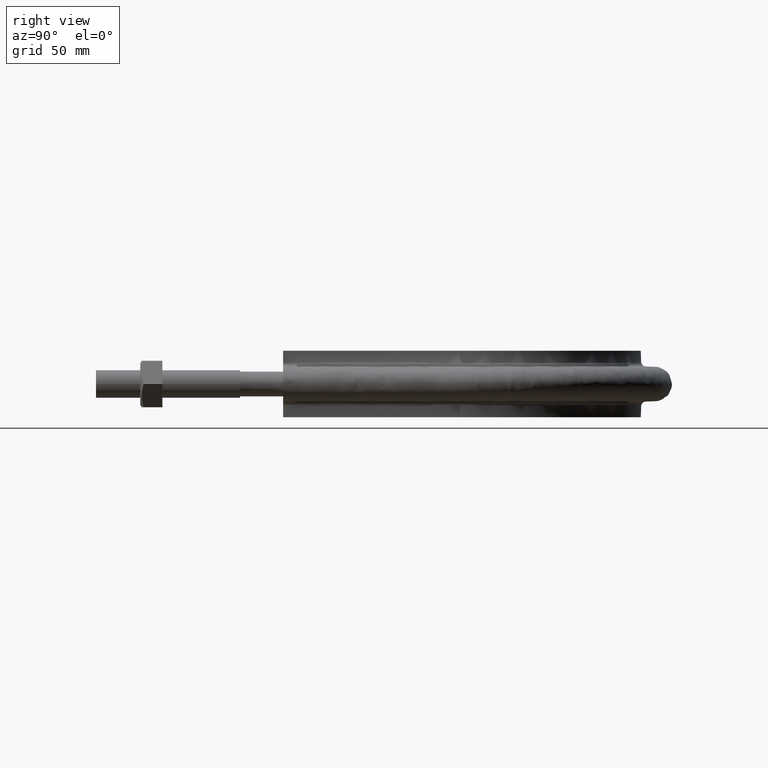
[diagram: clean part render]
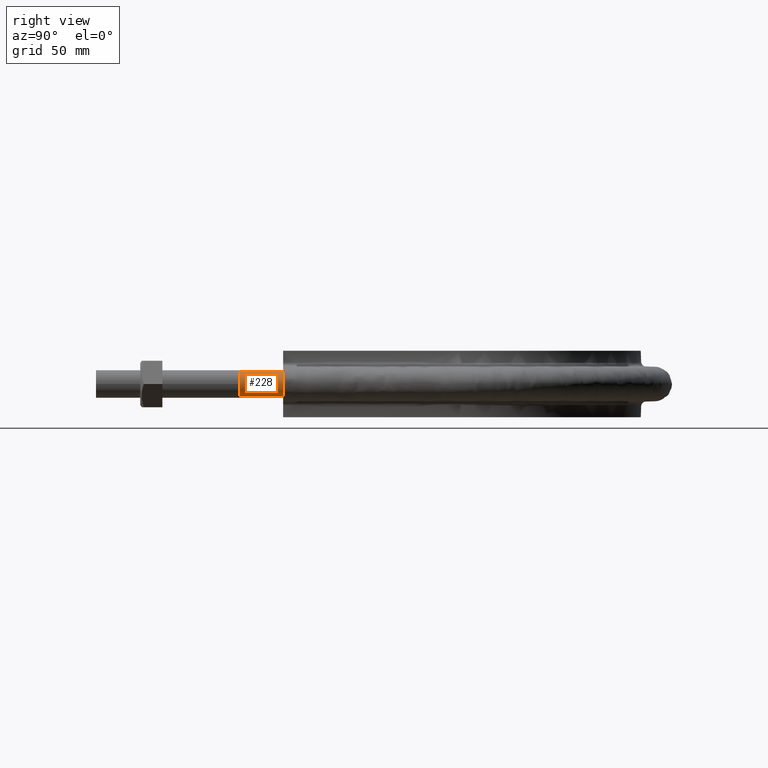
[diagram: same view with one face highlighted and labeled with its STEP entity id]
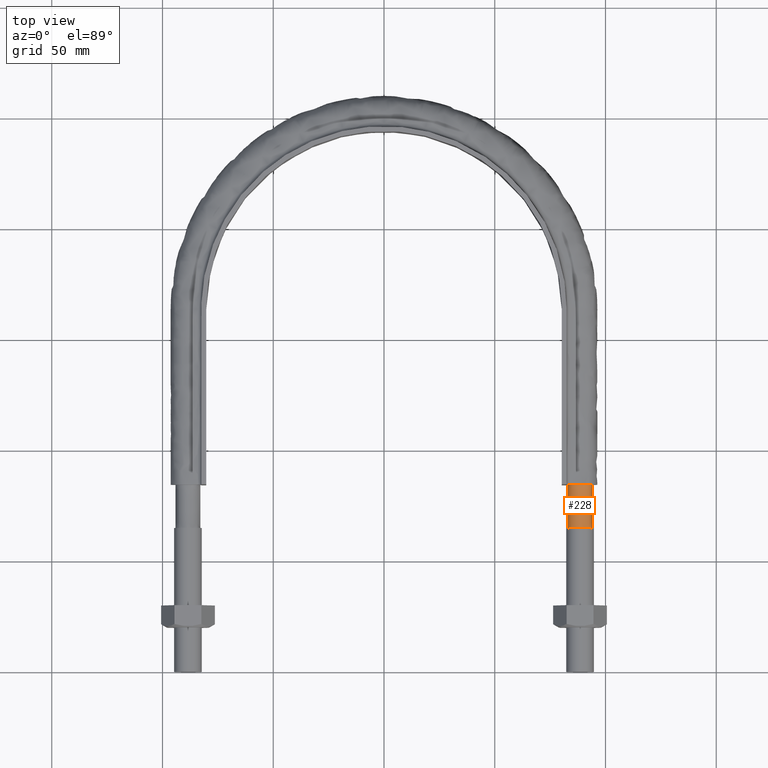
[diagram: same view with one face highlighted and labeled with its STEP entity id]
A machine part, right view. The second image highlights one B-rep face of the part: STEP entity #228.
A second angle (top view) of the same face is appended — the face is thin or edge-on in the first view.
In plain terms, the highlighted face is a SurfaceOfExtrusion surface.
Its self-contained STEP definition (entity closure, byte-faithful):
#228 = ADVANCED_FACE( '', ( #283, #284 ), #285, .T. );
#283 = FACE_OUTER_BOUND( '', #1294, .T. );
#284 = FACE_OUTER_BOUND( '', #1295, .T. );
#285 = SURFACE_OF_LINEAR_EXTRUSION( '', #1296, #1297 );
#1294 = EDGE_LOOP( '', ( #1449 ) );
#1295 = EDGE_LOOP( '', ( #1450 ) );
#1296 = B_SPLINE_CURVE_WITH_KNOTS( '', 3, ( #1451, #1452, #1453, #1454, #1455, #1456, #1457, #1458, #1459, #1460, #1461 ), .UNSPECIFIED., .T., .F., ( 4, 1, 1, 1, 1, 1, 1, 1, 4 ), ( 0.000000000000000, 0.125000000000000, 0.250000000000000, 0.375000000000000, 0.500000000000000, 0.625000000000000, 0.750000000000000, 0.875000000000000, 1.00000000000000 ), .UNSPECIFIED. );
#1297 = VECTOR( '', #1462, 1000.00000000000 );
#1449 = ORIENTED_EDGE( '', *, *, #1671, .F. );
#1450 = ORIENTED_EDGE( '', *, *, #1672, .T. );
#1451 = CARTESIAN_POINT( '', ( 82.8999999999999, 36.0000000000003, -3.44443499329175E-014 ) );
#1452 = CARTESIAN_POINT( '', ( 82.8999999999999, 36.0000000000003, 1.46274169979692 ) );
#1453 = CARTESIAN_POINT( '', ( 84.1117749006091, 36.0000000000003, 4.38822509939082 ) );
#1454 = CARTESIAN_POINT( '', ( 88.5000000000000, 36.0000000000003, 6.20588745030453 ) );
#1455 = CARTESIAN_POINT( '', ( 92.8882250993908, 36.0000000000003, 4.38822509939082 ) );
#1456 = CARTESIAN_POINT( '', ( 94.7058874503045, 36.0000000000003, -3.44433145333824E-014 ) );
#1457 = CARTESIAN_POINT( '', ( 92.8882250993908, 36.0000000000003, -4.38822509939089 ) );
#1458 = CARTESIAN_POINT( '', ( 88.5000000000000, 36.0000000000003, -6.20588745030460 ) );
#1459 = CARTESIAN_POINT( '', ( 84.1117749006091, 36.0000000000003, -4.38822509939088 ) );
#1460 = CARTESIAN_POINT( '', ( 82.8999999999999, 36.0000000000003, -1.46274169979698 ) );
#1461 = CARTESIAN_POINT( '', ( 82.8999999999999, 36.0000000000003, -3.44443499329175E-014 ) );
#1462 = DIRECTION( '', ( 1.36154883250853E-015, 1.00000000000000, 7.25841060900151E-016 ) );
#1671 = EDGE_CURVE( '', #1751, #1751, #1752, .T. );
#1672 = EDGE_CURVE( '', #1753, #1753, #1754, .T. );
#1751 = VERTEX_POINT( '', #2045 );
#1752 = B_SPLINE_CURVE_WITH_KNOTS( '', 3, ( #2046, #2047, #2048, #2049, #2050, #2051, #2052, #2053, #2054, #2055, #2056 ), .UNSPECIFIED., .T., .F., ( 4, 1, 1, 1, 1, 1, 1, 1, 4 ), ( 0.000000000000000, 0.125000000000000, 0.250000000000000, 0.375000000000000, 0.500000000000000, 0.625000000000000, 0.750000000000000, 0.875000000000000, 1.00000000000000 ), .UNSPECIFIED. );
#1753 = VERTEX_POINT( '', #2057 );
#1754 = B_SPLINE_CURVE_WITH_KNOTS( '', 3, ( #2058, #2059, #2060, #2061, #2062, #2063, #2064, #2065, #2066, #2067, #2068 ), .UNSPECIFIED., .T., .F., ( 4, 1, 1, 1, 1, 1, 1, 1, 4 ), ( 0.000000000000000, 0.125000000000000, 0.250000000000000, 0.375000000000000, 0.500000000000000, 0.625000000000000, 0.750000000000000, 0.875000000000000, 1.00000000000000 ), .UNSPECIFIED. );
#2045 = CARTESIAN_POINT( '', ( 82.9000000000000, 84.5000000000003, 7.58941520739853E-016 ) );
#2046 = CARTESIAN_POINT( '', ( 82.9000000000000, 84.5000000000003, 7.58941520739853E-016 ) );
#2047 = CARTESIAN_POINT( '', ( 82.9000000000000, 84.5000000000003, 1.46274169979695 ) );
#2048 = CARTESIAN_POINT( '', ( 84.1117749006092, 84.5000000000003, 4.38822509939085 ) );
#2049 = CARTESIAN_POINT( '', ( 88.5000000000000, 84.5000000000003, 6.20588745030457 ) );
#2050 = CARTESIAN_POINT( '', ( 92.8882250993909, 84.5000000000003, 4.38822509939085 ) );
#2051 = CARTESIAN_POINT( '', ( 94.7058874503046, 84.5000000000003, 7.59976920274947E-016 ) );
#2052 = CARTESIAN_POINT( '', ( 92.8882250993909, 84.5000000000003, -4.38822509939085 ) );
#2053 = CARTESIAN_POINT( '', ( 88.5000000000000, 84.5000000000003, -6.20588745030457 ) );
#2054 = CARTESIAN_POINT( '', ( 84.1117749006092, 84.5000000000003, -4.38822509939085 ) );
#2055 = CARTESIAN_POINT( '', ( 82.9000000000000, 84.5000000000003, -1.46274169979695 ) );
#2056 = CARTESIAN_POINT( '', ( 82.9000000000000, 84.5000000000003, 7.58941520739853E-016 ) );
#2057 = CARTESIAN_POINT( '', ( 82.9000000000000, 65.0000000000000, -1.33949591668133E-014 ) );
#2058 = CARTESIAN_POINT( '', ( 82.9000000000000, 65.0000000000000, -1.33949591668133E-014 ) );
#2059 = CARTESIAN_POINT( '', ( 82.9000000000000, 65.0000000000000, 1.46274169979694 ) );
#2060 = CARTESIAN_POINT( '', ( 84.1117749006092, 65.0000000000000, 4.38822509939084 ) );
#2061 = CARTESIAN_POINT( '', ( 88.5000000000000, 65.0000000000000, 6.20588745030455 ) );
#2062 = CARTESIAN_POINT( '', ( 92.8882250993909, 65.0000000000000, 4.38822509939084 ) );
#2063 = CARTESIAN_POINT( '', ( 94.7058874503045, 65.0000000000000, -1.33939237672782E-014 ) );
#2064 = CARTESIAN_POINT( '', ( 92.8882250993909, 65.0000000000000, -4.38822509939087 ) );
#2065 = CARTESIAN_POINT( '', ( 88.5000000000000, 65.0000000000000, -6.20588745030458 ) );
#2066 = CARTESIAN_POINT( '', ( 84.1117749006092, 65.0000000000000, -4.38822509939086 ) );
#2067 = CARTESIAN_POINT( '', ( 82.9000000000000, 65.0000000000000, -1.46274169979696 ) );
#2068 = CARTESIAN_POINT( '', ( 82.9000000000000, 65.0000000000000, -1.33949591668133E-014 ) );